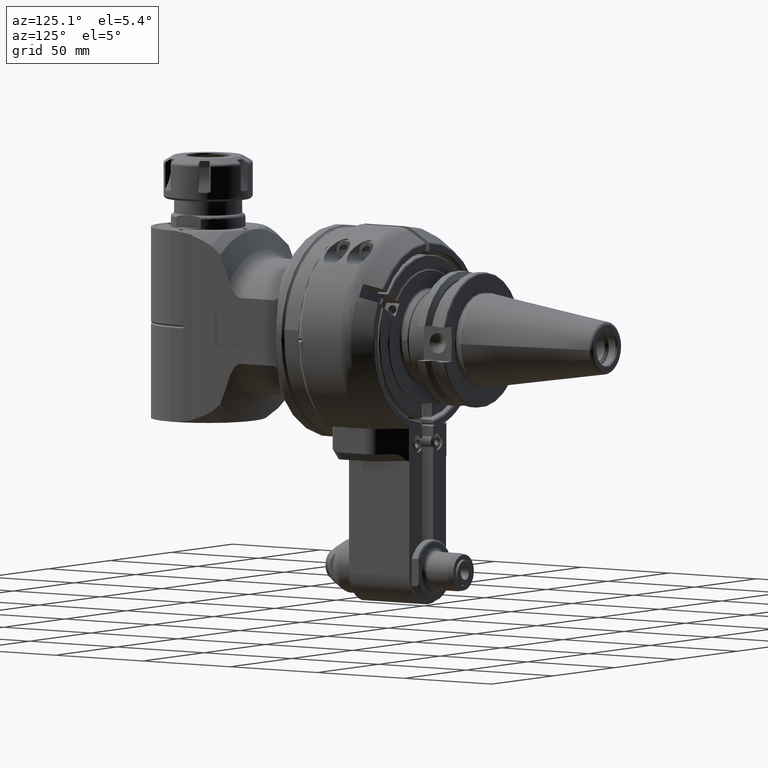
[diagram: clean part render]
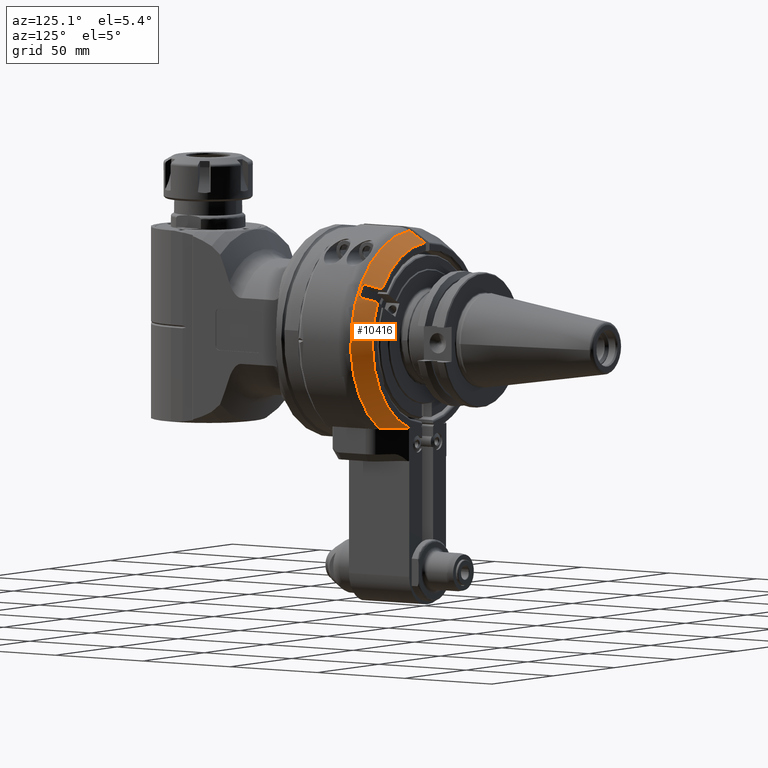
[diagram: same view with one face highlighted and labeled with its STEP entity id]
A machine part, auxiliary view. The second image highlights one B-rep face of the part: STEP entity #10416.
In plain terms, the highlighted conical surface has half-angle 30 deg.
Its self-contained STEP definition (entity closure, byte-faithful):
#199=B_SPLINE_CURVE_WITH_KNOTS('',3,(#17428,#17429,#17430,#17431,#17432,
#17433,#17434,#17435,#17436,#17437),.UNSPECIFIED.,.F.,.F.,(4,3,3,4),(7.66076698515017E-6,
0.3333333333333,0.6666666666667,1.),.UNSPECIFIED.);
#200=B_SPLINE_CURVE_WITH_KNOTS('',3,(#17458,#17459,#17460,#17461,#17462,
#17463,#17464,#17465,#17466,#17467),.UNSPECIFIED.,.F.,.F.,(4,3,3,4),(0.,
0.3333333333333,0.6666666666667,0.999992845897291),.UNSPECIFIED.);
#202=B_SPLINE_CURVE_WITH_KNOTS('',3,(#17500,#17501,#17502,#17503,#17504,
#17505,#17506,#17507,#17508,#17509,#17510,#17511,#17512,#17513),
 .UNSPECIFIED.,.F.,.F.,(4,1,1,1,1,1,1,1,1,1,1,4),(0.,0.09090909090909,0.1818181818182,
0.2727272727273,0.3636363636364,0.4545454545455,0.5454545454545,0.6363636363636,
0.7272727272727,0.8181818181818,0.9090909090909,1.),.UNSPECIFIED.);
#203=B_SPLINE_CURVE_WITH_KNOTS('',3,(#17516,#17517,#17518,#17519,#17520,
#17521,#17522,#17523,#17524,#17525),.UNSPECIFIED.,.F.,.F.,(4,3,3,4),(2.50178337008359E-6,
0.3333333333333,0.6666666666667,1.),.UNSPECIFIED.);
#358=CONICAL_SURFACE('',#11247,46.84048999,0.523598775598299);
#2512=FACE_OUTER_BOUND('',#3173,.T.);
#3173=EDGE_LOOP('',(#7570,#7571,#7572,#7573,#7574,#7575,#7576,#7577));
#3918=CIRCLE('',#11231,48.90747728811);
#3925=CIRCLE('',#11246,44.28867513459);
#3926=CIRCLE('',#11248,44.28867513459);
#3927=CIRCLE('',#11249,49.39230484541);
#4595=VERTEX_POINT('',#17425);
#4596=VERTEX_POINT('',#17427);
#4598=VERTEX_POINT('',#17441);
#4604=VERTEX_POINT('',#17456);
#4609=VERTEX_POINT('',#17494);
#4610=VERTEX_POINT('',#17498);
#4611=VERTEX_POINT('',#17499);
#4612=VERTEX_POINT('',#17515);
#5724=EDGE_CURVE('',#4596,#4595,#199,.T.);
#5727=EDGE_CURVE('',#4598,#4595,#3918,.T.);
#5735=EDGE_CURVE('',#4598,#4604,#200,.T.);
#5744=EDGE_CURVE('',#4609,#4604,#3925,.T.);
#5745=EDGE_CURVE('',#4610,#4611,#202,.T.);
#5746=EDGE_CURVE('',#4596,#4610,#3926,.T.);
#5747=EDGE_CURVE('',#4609,#4612,#203,.T.);
#5748=EDGE_CURVE('',#4611,#4612,#3927,.T.);
#7570=ORIENTED_EDGE('',*,*,#5745,.F.);
#7571=ORIENTED_EDGE('',*,*,#5746,.F.);
#7572=ORIENTED_EDGE('',*,*,#5724,.T.);
#7573=ORIENTED_EDGE('',*,*,#5727,.F.);
#7574=ORIENTED_EDGE('',*,*,#5735,.T.);
#7575=ORIENTED_EDGE('',*,*,#5744,.F.);
#7576=ORIENTED_EDGE('',*,*,#5747,.T.);
#7577=ORIENTED_EDGE('',*,*,#5748,.F.);
#10416=ADVANCED_FACE('',(#2512),#358,.T.);
#11231=AXIS2_PLACEMENT_3D('',#17443,#12860,#12861);
#11246=AXIS2_PLACEMENT_3D('',#17496,#12895,#12896);
#11247=AXIS2_PLACEMENT_3D('',#17497,#12897,#12898);
#11248=AXIS2_PLACEMENT_3D('',#17514,#12899,#12900);
#11249=AXIS2_PLACEMENT_3D('',#17526,#12901,#12902);
#12860=DIRECTION('center_axis',(0.,1.,0.));
#12861=DIRECTION('ref_axis',(0.828023092261376,0.,0.560693997365684));
#12895=DIRECTION('center_axis',(0.,1.,0.));
#12896=DIRECTION('ref_axis',(0.0338687033523017,0.,0.999426290895549));
#12897=DIRECTION('center_axis',(0.,-1.,0.));
#12898=DIRECTION('ref_axis',(0.,0.,1.));
#12899=DIRECTION('center_axis',(0.,1.,0.));
#12900=DIRECTION('ref_axis',(0.902830377486504,0.,0.429996871485802));
#12901=DIRECTION('center_axis',(0.,-1.,0.));
#12902=DIRECTION('ref_axis',(0.526241939180605,0.,-0.850334887822108));
#17425=CARTESIAN_POINT('',(43.9965205788,31.,21.35995111525));
#17427=CARTESIAN_POINT('',(39.9851327385036,39.0000574311685,19.0439746816784));
#17428=CARTESIAN_POINT('Ctrl Pts',(39.9851325718324,39.0000574888253,19.0439751696042));
#17429=CARTESIAN_POINT('Ctrl Pts',(40.4021284835291,38.1686739893507,19.2847278714732));
#17430=CARTESIAN_POINT('Ctrl Pts',(40.8285997896714,37.3183137318181,19.5309511948761));
#17431=CARTESIAN_POINT('Ctrl Pts',(41.2642990955139,36.4494676081702,19.78250230639));
#17432=CARTESIAN_POINT('Ctrl Pts',(41.7000084149592,35.5806015159801,20.0340591992602));
#17433=CARTESIAN_POINT('Ctrl Pts',(42.1449461582807,34.6932487079499,20.2909441251396));
#17434=CARTESIAN_POINT('Ctrl Pts',(42.6001961920632,33.7852447443823,20.5537828546925));
#17435=CARTESIAN_POINT('Ctrl Pts',(43.0554462258456,32.8772407808149,20.8166215842453));
#17436=CARTESIAN_POINT('Ctrl Pts',(43.521008550089,31.94858566171,21.0854141174718));
#17437=CARTESIAN_POINT('Ctrl Pts',(43.9965205787995,31.,21.3599511152508));
#17441=CARTESIAN_POINT('',(40.4965205788,31.,27.42212894174));
#17443=CARTESIAN_POINT('Origin',(0.,31.,0.));
#17456=CARTESIAN_POINT('',(36.4851341375781,39.0000536663798,25.1061544459899));
#17458=CARTESIAN_POINT('Ctrl Pts',(40.4965205787991,31.,27.4221289417415));
#17459=CARTESIAN_POINT('Ctrl Pts',(40.0214323904192,31.94774015446,27.1478366482915));
#17460=CARTESIAN_POINT('Ctrl Pts',(39.5561504547519,32.8758360971199,26.8792059974849));
#17461=CARTESIAN_POINT('Ctrl Pts',(39.1009807698509,33.7836798905781,26.6164136573804));
#17462=CARTESIAN_POINT('Ctrl Pts',(38.6458110849499,34.6915236840366,26.3536213172758));
#17463=CARTESIAN_POINT('Ctrl Pts',(38.2007536508152,35.5791153282934,26.0966672878733));
#17464=CARTESIAN_POINT('Ctrl Pts',(37.7648941095113,36.4482810659344,25.8450236643726));
#17465=CARTESIAN_POINT('Ctrl Pts',(37.3290439227594,37.3174281492723,25.593385441725));
#17466=CARTESIAN_POINT('Ctrl Pts',(36.9023912340264,38.1681501169107,25.3470573970345));
#17467=CARTESIAN_POINT('Ctrl Pts',(36.4851344544523,39.000053720172,25.1061540830262));
#17494=CARTESIAN_POINT('',(1.49999993762843,39.0000000328686,44.263266303079));
#17496=CARTESIAN_POINT('Origin',(0.,39.,0.));
#17497=CARTESIAN_POINT('Origin',(0.,34.58012701892,0.));
#17498=CARTESIAN_POINT('',(14.0529977427591,38.9999999943178,-41.9999999988726));
#17499=CARTESIAN_POINT('',(25.9923022796644,30.1602540395452,-42.0000000005555));
#17500=CARTESIAN_POINT('Ctrl Pts',(14.05299774384,38.99999999098,-42.00000000043));
#17501=CARTESIAN_POINT('Ctrl Pts',(14.37212249702,38.82461298817,-42.00000000043));
#17502=CARTESIAN_POINT('Ctrl Pts',(15.01655576466,38.45968368642,-41.9999999998));
#17503=CARTESIAN_POINT('Ctrl Pts',(16.00031684054,37.86957139403,-42.00000000005));
#17504=CARTESIAN_POINT('Ctrl Pts',(17.00368129352,37.23417202563,-41.99999999999));
#17505=CARTESIAN_POINT('Ctrl Pts',(18.02825409049,36.55123267318,-42.));
#17506=CARTESIAN_POINT('Ctrl Pts',(19.07605723942,35.81808246157,-42.));
#17507=CARTESIAN_POINT('Ctrl Pts',(20.14922236664,35.03177789277,-42.));
#17508=CARTESIAN_POINT('Ctrl Pts',(21.25008870753,34.18902360549,-42.));
#17509=CARTESIAN_POINT('Ctrl Pts',(22.38116391328,33.28618435814,-42.));
#17510=CARTESIAN_POINT('Ctrl Pts',(23.54536482036,32.31904407569,-42.00000000001));
#17511=CARTESIAN_POINT('Ctrl Pts',(24.74524202823,31.28348691044,-41.99999999997));
#17512=CARTESIAN_POINT('Ctrl Pts',(25.57243195567,30.54295650924,-42.00000000008));
#17513=CARTESIAN_POINT('Ctrl Pts',(25.99230227916,30.16025404068,-42.00000000008));
#17514=CARTESIAN_POINT('Origin',(0.,39.,0.));
#17515=CARTESIAN_POINT('',(1.50000009631114,30.160265019228,49.3695164173488));
#17516=CARTESIAN_POINT('Ctrl Pts',(1.5,39.0000000332564,44.2632663037565));
#17517=CARTESIAN_POINT('Ctrl Pts',(1.5,38.065418345636,44.8031570327464));
#17518=CARTESIAN_POINT('Ctrl Pts',(1.5,37.1150044702991,45.3521823870118));
#17519=CARTESIAN_POINT('Ctrl Pts',(1.5,36.1489340606836,45.910241021564));
#17520=CARTESIAN_POINT('Ctrl Pts',(1.5,35.1828564003168,46.4683038445733));
#17521=CARTESIAN_POINT('Ctrl Pts',(1.5,34.2011219706532,47.0354000834667));
#17522=CARTESIAN_POINT('Ctrl Pts',(1.5,33.2030775420739,47.6119071932785));
#17523=CARTESIAN_POINT('Ctrl Pts',(1.5,32.2050331134948,48.1884143030901));
#17524=CARTESIAN_POINT('Ctrl Pts',(1.5,31.190678686,48.77433228382));
#17525=CARTESIAN_POINT('Ctrl Pts',(1.5,30.16027599869,49.36951007704));
#17526=CARTESIAN_POINT('Origin',(0.,30.16025403784,0.));